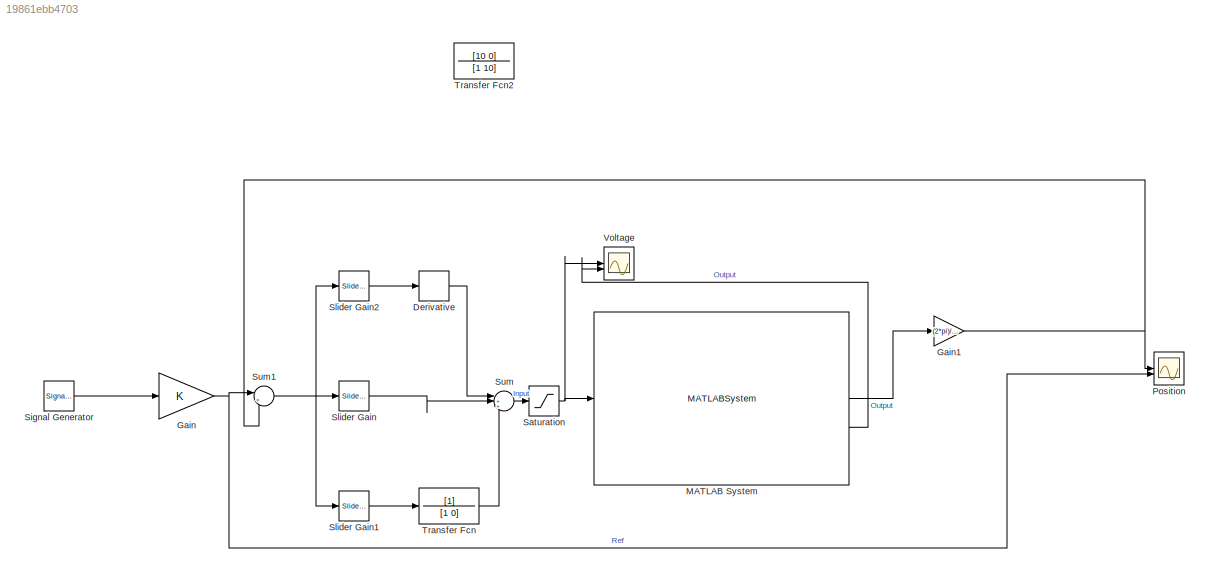
MODEL slx_19861ebb4703
KIND model
CONFIG AbsTol = auto
CONFIG EnableMultiTasking = off
CONFIG FixedStep = .002
CONFIG MaxStep = auto
CONFIG MinStep = auto
CONFIG RelTol = 1e-3
CONFIG SampleTimeConstraint = Unconstrained
CONFIG SolverName = FixedStepAuto
CONFIG StartTime = 0.0
CONFIG StopTime = inf
BLOCK [Derivative] Derivative
BLOCK [Gain] Gain
BLOCK [Gain] Gain1
  Gain = (2*pi)/2048
BLOCK [MATLABSystem] MATLAB System
  BaudRate = 115200
  COMPort = /dev/ttyACM0
  MaskType = ArduinoSerial
  SimulateUsing = Interpreted execution
  System = ArduinoSerial
  TimerPeriod = 0.005
BLOCK [Scope] Position
  ActiveDisplayYMaximum = 873.0296356104534
  ActiveDisplayYMinimum = -365.02359945676773
  Floating = off
  GraphicalSettings = {"AxesScalingProperties":{"AlignXAxis":"Center","AlignYAxis":"Center","AutoScaleXAxisLimits":false,"AxesScaling":"Manual","AxesScalingNumUpdates":10,"ExpandOnly":true,"ScaleAxesLimitsAtStop":false,"XAxisDataRange":100,"YAxisDataRange":80},"DisplayProperties":{"ColorOrder":["auto","auto","auto","auto","auto","auto","auto","auto","auto","auto","auto","auto","auto","auto","auto","auto","auto","auto",...<+2109ch>
  MultipleDisplayCache = [{"MaxYLimMag":411.77809557981379,"MaxYLimReal":873.0296356104534,"MinYLimMag":0,"MinYLimReal":-365.02359945676773,"PlotAsMagnitudePhase":false,"ShowGrid":true,"ShowLegend":false,"Title":"%<SignalLabel>","YLabel":""}]
  NumInputPorts = 2
  ScopeFrameLocation = window
  Visible = on
  WasSavedAsWebScope = on
  WindowPosition = [961.000000,585.000000,960.000000,547.000000,]
BLOCK [Saturate] Saturation
  LowerLimit = -3
  UpperLimit = 3
BLOCK [SignalGenerator] Signal Generator
  Frequency = .5
  WaveForm = square
BLOCK [Reference] Slider Gain  REF=simulink/Math
Operations/Slider
Gain
  SourceBlock = simulink/Math\nOperations/Slider\nGain
  SourceType = Slider Gain
BLOCK [Reference] Slider Gain1  REF=simulink/Math
Operations/Slider
Gain
  SourceBlock = simulink/Math\nOperations/Slider\nGain
  SourceType = Slider Gain
BLOCK [Reference] Slider Gain2  REF=simulink/Math
Operations/Slider
Gain
  SourceBlock = simulink/Math\nOperations/Slider\nGain
  SourceType = Slider Gain
BLOCK [Sum] Sum
  Inputs = |+++
BLOCK [Sum] Sum1
  Inputs = |+-
BLOCK [TransferFcn] Transfer Fcn
  Denominator = [1 0]
BLOCK [TransferFcn] Transfer Fcn2
  Denominator = [1 10]
  Numerator = [10 0]
BLOCK [Scope] Voltage
  ActiveDisplayYMaximum = 7.8345844750588949
  ActiveDisplayYMinimum = -7.1806488970151925
  DataLoggingVariableName = ScopeData1
  Floating = off
  GraphicalSettings = {"AxesScalingProperties":{"AlignXAxis":"Center","AlignYAxis":"Center","AutoScaleXAxisLimits":false,"AxesScaling":"Manual","AxesScalingNumUpdates":10,"ExpandOnly":true,"ScaleAxesLimitsAtStop":false,"XAxisDataRange":100,"YAxisDataRange":80},"DisplayProperties":{"ColorOrder":["auto","auto","auto","auto","auto","auto","auto","auto","auto","auto","auto","auto","auto","auto","auto","auto","auto","auto",...<+2101ch>
  MultipleDisplayCache = [{"MaxYLimMag":0.6,"MaxYLimReal":7.8345844750588949,"MinYLimMag":0.4,"MinYLimReal":-7.1806488970151925,"PlotAsMagnitudePhase":false,"ShowGrid":true,"ShowLegend":false,"Title":"%<SignalLabel>","YLabel":""}]
  NumInputPorts = 2
  ScopeFrameLocation = window
  Visible = on
  WasSavedAsWebScope = on
  WindowPosition = [961.000000,1.000000,960.000000,547.000000,]
LINE Derivative:1 -> Sum:1
NET Gain1:1 -> Position:1, Sum1:2
NET Gain:1 -> Position:2, Sum1:1
LINE MATLAB System:1 -> Gain1:1
LINE MATLAB System:2 -> Voltage:2
NET Saturation:1 -> MATLAB System:1, Voltage:1
LINE Signal Generator:1 -> Gain:1
LINE Slider Gain1:1 -> Transfer Fcn:1
LINE Slider Gain2:1 -> Derivative:1
LINE Slider Gain:1 -> Sum:2
NET Sum1:1 -> Slider Gain1:1, Slider Gain2:1, Slider Gain:1
LINE Sum:1 -> Saturation:1
LINE Transfer Fcn:1 -> Sum:3
note: NET lines group one-source signal fan-out (src -> all destinations, sorted); 1:1 wires keep LINE
